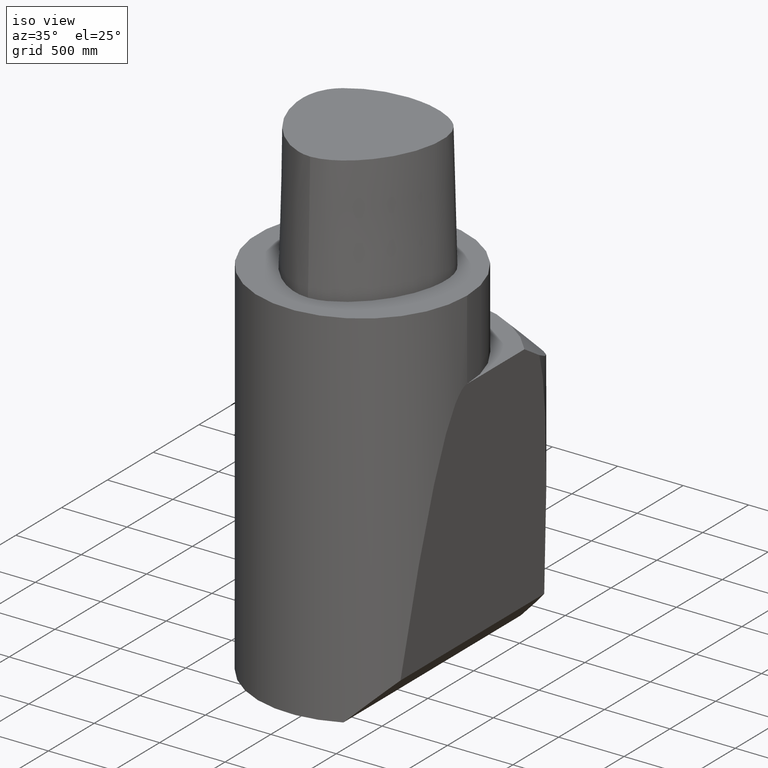
[diagram: clean part render]
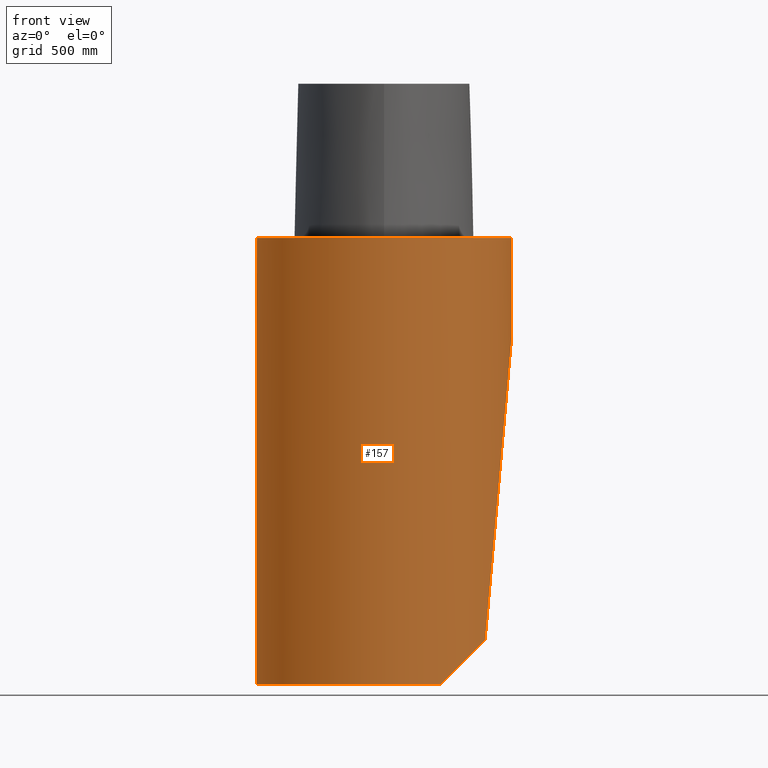
[diagram: tour spotlight — one face highlighted and labeled with its STEP entity id]
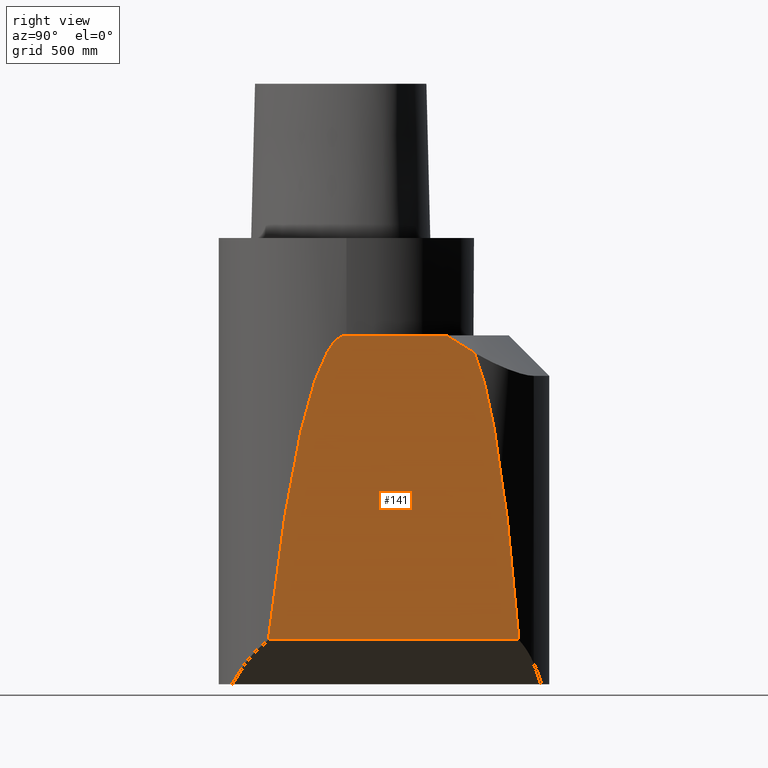
[diagram: tour spotlight — one face highlighted and labeled with its STEP entity id]
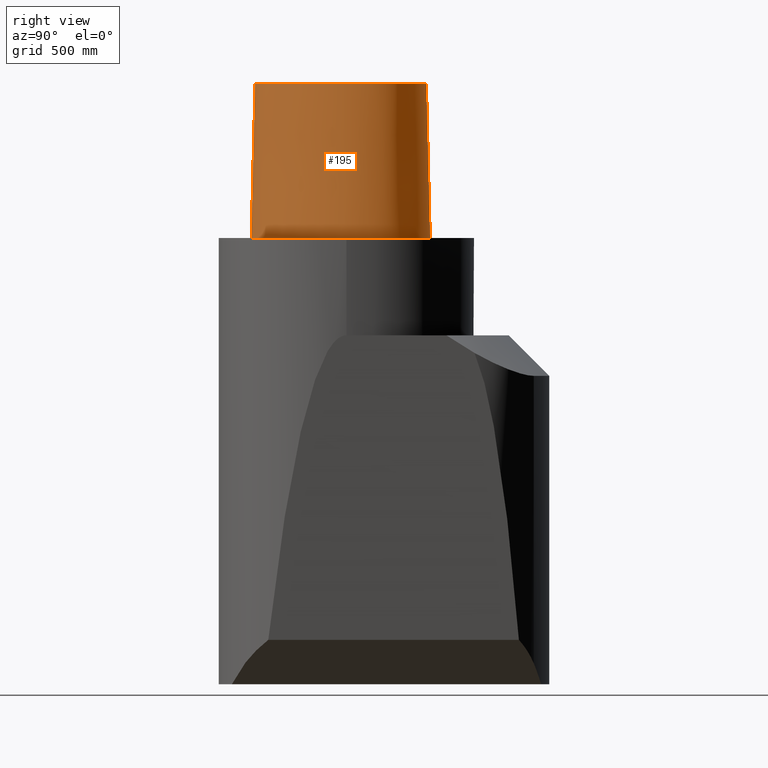
[diagram: tour spotlight — one face highlighted and labeled with its STEP entity id]
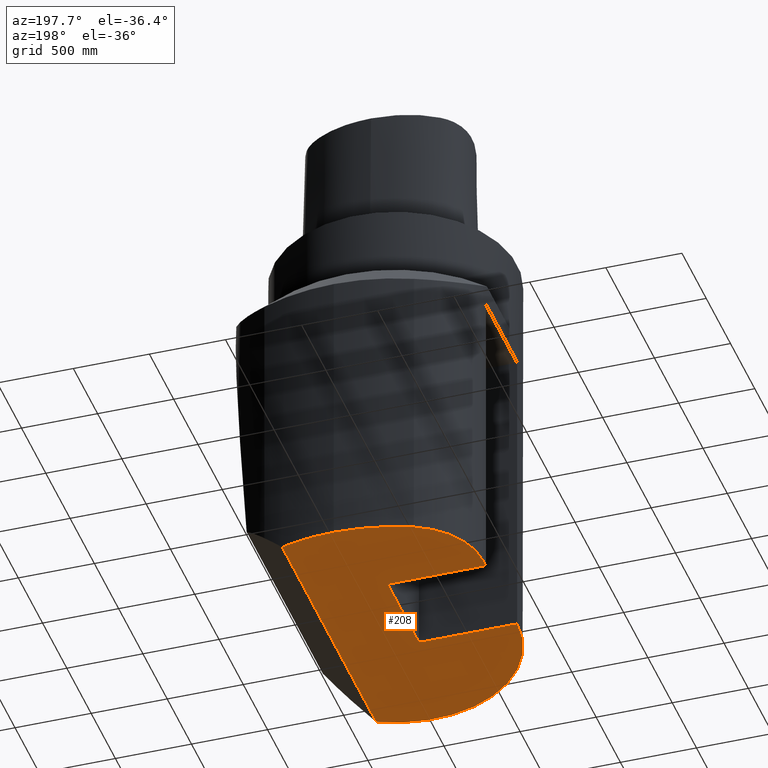
[diagram: tour spotlight — one face highlighted and labeled with its STEP entity id]
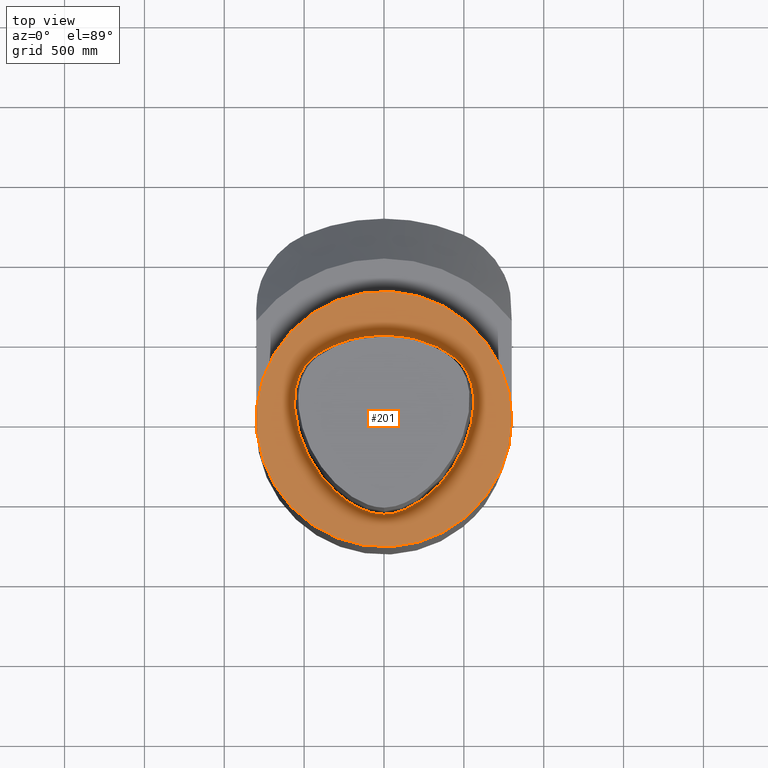
[diagram: tour spotlight — one face highlighted and labeled with its STEP entity id]
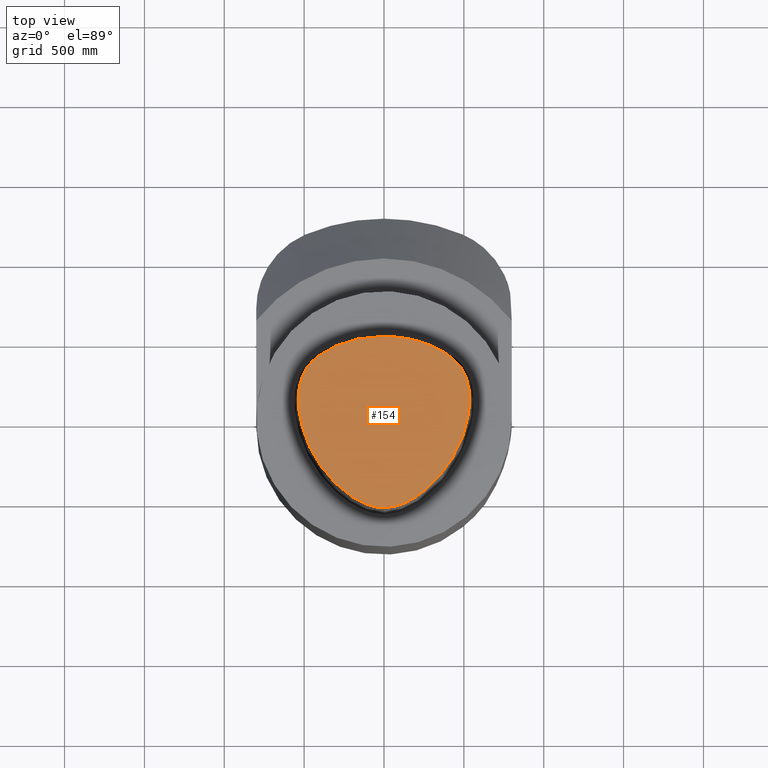
[diagram: tour spotlight — one face highlighted and labeled with its STEP entity id]
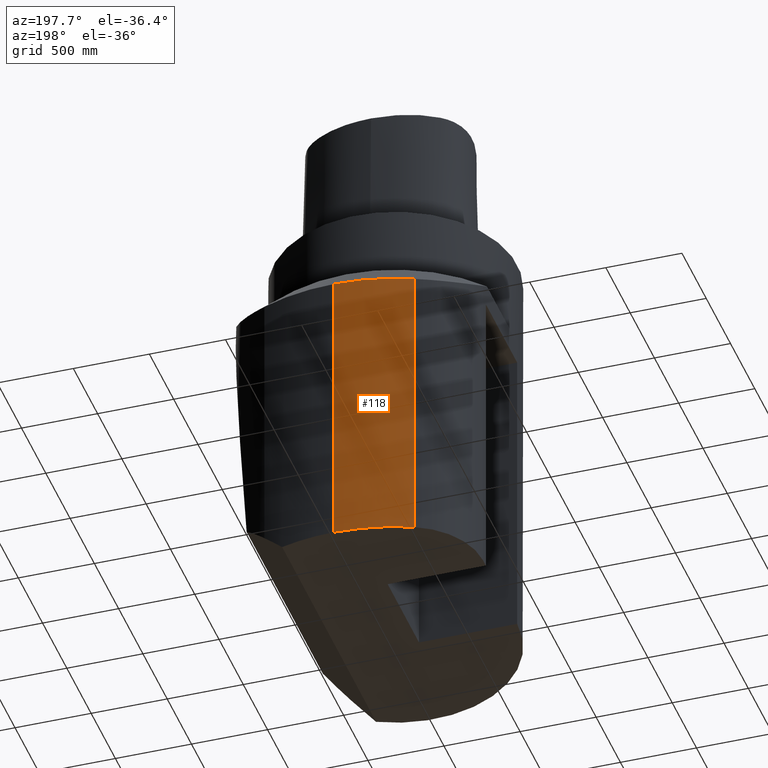
[diagram: tour spotlight — one face highlighted and labeled with its STEP entity id]
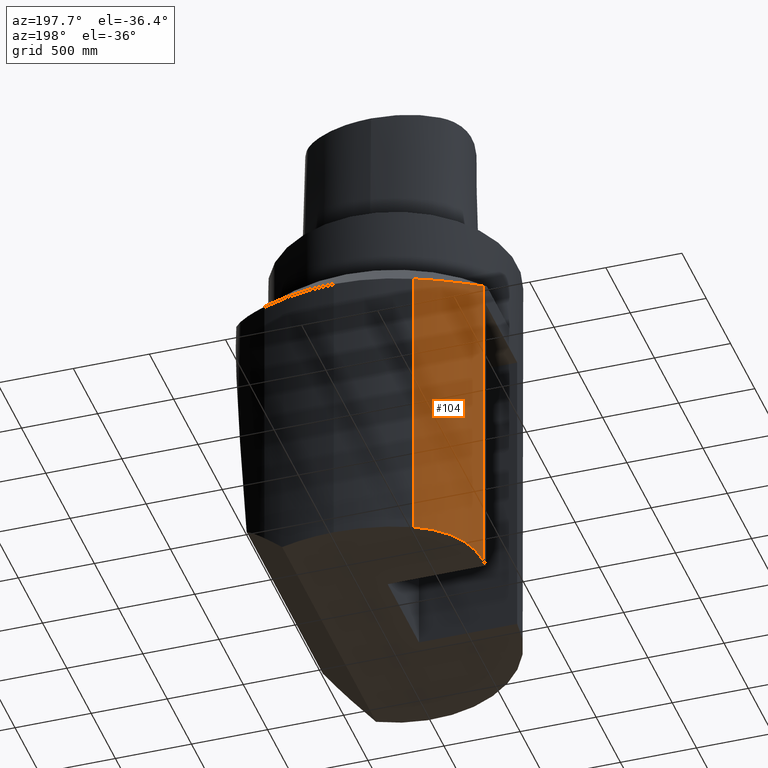
[diagram: tour spotlight — one face highlighted and labeled with its STEP entity id]
A machine part: a face-by-face anatomy tour. The part has 20 B-rep faces; the first image is the clean iso view, then the 8 largest visible faces are spotlighted one at a time (largest first), each with its STEP entity span.

Face 1 — front view, entity #157. In plain terms, the highlighted cylindrical surface (bore or boss wall) has radius 800.1 mm, axis along (0, -0, -1).
Definition (entity closure, byte-faithful):
#92=EDGE_CURVE('Unnamed[1]',#265,#266,#267,.T.);
#97=EDGE_CURVE('Unnamed[1]',#266,#273,#274,.T.);
#123=EDGE_CURVE('Unnamed[1]',#273,#316,#317,.T.);
#157=ADVANCED_FACE('Unnamed[1]',(#362,#363),#364,.T.);
#169=EDGE_CURVE('Unnamed[1]',#265,#379,#380,.T.);
#186=EDGE_CURVE('Unnamed[1]',#316,#288,#401,.T.);
#190=EDGE_CURVE('Unnamed[1]',#379,#288,#406,.T.);
#192=EDGE_CURVE('Unnamed[1]',#408,#408,#409,.T.);
#265=VERTEX_POINT('',#482);
#266=VERTEX_POINT('',#483);
#267=CIRCLE('',#484,31.5);
#273=VERTEX_POINT('',#492);
#274=LINE('',#493,#494);
#288=VERTEX_POINT('',#514);
#316=VERTEX_POINT('',#566);
#317=LINE('',#567,#568);
#362=FACE_BOUND('',#682,.T.);
#363=FACE_BOUND('',#683,.T.);
#364=CYLINDRICAL_SURFACE('',#684,31.5);
#379=VERTEX_POINT('',#722);
#380=ELLIPSE('',#723,44.5477272147526,31.5);
#401=CIRCLE('',#764,31.5);
#406=ELLIPSE('',#771,361.421967238612,31.5);
#408=VERTEX_POINT('',#774);
#409=CIRCLE('',#775,31.5);
#482=CARTESIAN_POINT('',(13.9999999999624,-28.2179021190636,-110.000000000098));
#483=CARTESIAN_POINT('',(-31.5,2.55437894524082E-014,-109.999999999992));
#484=AXIS2_PLACEMENT_3D('',#1046,#1047,#1048);
#492=CARTESIAN_POINT('',(-31.5,-5.28939329335578E-014,-29.9999999999993));
#493=CARTESIAN_POINT('',(-31.5,1.85633026972678E-014,-224.0));
#494=VECTOR('',#1060,1.0);
#514=CARTESIAN_POINT('',(31.5,-7.25603228494807E-015,-24.0));
#566=CARTESIAN_POINT('',(-31.5,3.08097706887413E-014,-24.0));
#567=CARTESIAN_POINT('',(-31.5,1.85633026972678E-014,-224.0));
#568=VECTOR('',#1101,1.0);
#682=EDGE_LOOP('',(#1138));
#683=EDGE_LOOP('',(#1139,#1140,#1141,#1142,#1143,#1144));
#684=AXIS2_PLACEMENT_3D('',#1145,#1146,#1147);
#722=CARTESIAN_POINT('',(24.9324394536427,-19.25158338658,-99.0675605464172));
#723=AXIS2_PLACEMENT_3D('',#1165,#1166,#1167);
#764=AXIS2_PLACEMENT_3D('',#1190,#1191,#1192);
#771=AXIS2_PLACEMENT_3D('',#1196,#1197,#1198);
#774=CARTESIAN_POINT('',(31.5,-5.78645612597124E-015,3.85763741731416E-015));
#775=AXIS2_PLACEMENT_3D('',#1199,#1200,#1201);
#1046=CARTESIAN_POINT('',(7.53338801361048E-015,2.16861520350889E-014,-110.000000000077));
#1047=DIRECTION('',(-1.50509126675426E-012,-6.12323399570912E-017,-1.0));
#1048=DIRECTION('',(3.06161699786838E-016,1.0,-6.1232339957552E-017));
#1060=DIRECTION('',(-1.22464679914735E-016,6.12323399573677E-017,1.0));
#1101=DIRECTION('',(-1.22464679914735E-016,6.12323399573677E-017,1.0));
#1138=ORIENTED_EDGE('',*,*,#192,.T.);
#1139=ORIENTED_EDGE('',*,*,#169,.T.);
#1140=ORIENTED_EDGE('',*,*,#190,.T.);
#1141=ORIENTED_EDGE('',*,*,#186,.F.);
#1142=ORIENTED_EDGE('',*,*,#123,.F.);
#1143=ORIENTED_EDGE('',*,*,#97,.F.);
#1144=ORIENTED_EDGE('',*,*,#92,.F.);
#1145=CARTESIAN_POINT('',(1.46957615897682E-015,-7.34788079488412E-016,-12.0));
#1146=DIRECTION('',(1.22464679914735E-016,-6.12323399573677E-017,-1.0));
#1147=DIRECTION('',(1.0,-1.83697019872103E-016,1.22464679914735E-016));
#1165=CARTESIAN_POINT('',(1.51856203094345E-014,-7.59281015471727E-015,-124.00000000006));
#1166=DIRECTION('',(-0.70710678118655,1.73191211247099E-016,0.707106781186545));
#1167=DIRECTION('',(0.707106781186545,-8.65956056235487E-017,0.70710678118655));
#1190=CARTESIAN_POINT('',(2.93915231795365E-015,-1.46957615897682E-015,-24.0));
#1191=DIRECTION('',(1.22464679914735E-016,-6.12323399573677E-017,-1.0));
#1192=DIRECTION('',(1.0,-1.83697019872103E-016,1.22464679914735E-016));
#1196=CARTESIAN_POINT('',(4.7032149762945E-014,-2.35160748814725E-014,-384.046647536993));
#1197=DIRECTION('',(-0.996194698091746,1.88334747321004E-016,0.0871557427476553));
#1198=DIRECTION('',(0.0871557427476553,4.49890822097971E-017,0.996194698091746));
#1199=CARTESIAN_POINT('',(0.0,0.0,0.0));
#1200=DIRECTION('',(1.22464679914735E-016,-6.12323399573677E-017,-1.0));
#1201=DIRECTION('',(1.0,-1.83697019872103E-016,1.22464679914735E-016));

Face 2 — right view, entity #141. In plain terms, the highlighted planar face has unit normal (-0.9962, 0, 0.0872).
Definition (entity closure, byte-faithful):
#106=EDGE_CURVE('Unnamed[1]',#288,#289,#290,.T.);
#141=ADVANCED_FACE('Unnamed[1]',(#342),#343,.F.);
#190=EDGE_CURVE('Unnamed[1]',#379,#288,#406,.T.);
#210=EDGE_CURVE('Unnamed[1]',#292,#304,#433,.T.);
#229=EDGE_CURVE('Unnamed[1]',#289,#292,#453,.T.);
#247=EDGE_CURVE('Unnamed[1]',#379,#304,#473,.T.);
#288=VERTEX_POINT('',#514);
#289=VERTEX_POINT('',#515);
#290=LINE('',#516,#517);
#292=VERTEX_POINT('',#520);
#304=VERTEX_POINT('',#551);
#342=FACE_OUTER_BOUND('',#605,.T.);
#343=PLANE('',#606);
#379=VERTEX_POINT('',#722);
#406=ELLIPSE('',#771,361.421967238612,31.5);
#433=ELLIPSE('',#874,229.474264913404,20.0);
#453=(B_SPLINE_CURVE(2,(#989,#990,#991),.UNSPECIFIED.,.F.,.F.)B_SPLINE_CURVE_WITH_KNOTS((3,3),(0.0,17.9505613842272),.UNSPECIFIED.)RATIONAL_B_SPLINE_CURVE((1.0,1.01227031404473,1.0))BOUNDED_CURVE()REPRESENTATION_ITEM('')GEOMETRIC_REPRESENTATION_ITEM()CURVE());
#473=LINE('',#1043,#1044);
#514=CARTESIAN_POINT('',(31.5,-7.25603228494807E-015,-24.0));
#515=CARTESIAN_POINT('',(31.4999999999998,24.6525860712455,-24.0));
#516=CARTESIAN_POINT('',(31.4999999999998,6.92662721561405,-24.0));
#517=VECTOR('',#1071,1.0);
#520=CARTESIAN_POINT('',(31.1202210060076,31.5855458145115,-28.3408937648218));
#551=CARTESIAN_POINT('',(24.9324394536427,42.5243889511943,-99.0675605464172));
#605=EDGE_LOOP('',(#1121,#1122,#1123,#1124,#1125));
#606=AXIS2_PLACEMENT_3D('',#1126,#1127,#1128);
#722=CARTESIAN_POINT('',(24.9324394536427,-19.25158338658,-99.0675605464172));
#771=AXIS2_PLACEMENT_3D('',#1196,#1197,#1198);
#874=AXIS2_PLACEMENT_3D('',#1243,#1244,#1245);
#989=CARTESIAN_POINT('',(31.4999999999999,24.6525860712454,-24.0));
#990=CARTESIAN_POINT('',(31.1639087074079,31.3151129702548,-27.8415410528293));
#991=CARTESIAN_POINT('',(30.6250731240223,39.5240545960501,-34.0004599535158));
#1043=CARTESIAN_POINT('',(24.9324394536427,-1.06461533719011E-014,-99.0675605464172));
#1044=VECTOR('',#1280,1.0);
#1071=DIRECTION('',(3.11923701062335E-016,1.0,-6.12323399573677E-017));
#1121=ORIENTED_EDGE('',*,*,#210,.F.);
#1122=ORIENTED_EDGE('',*,*,#229,.F.);
#1123=ORIENTED_EDGE('',*,*,#106,.F.);
#1124=ORIENTED_EDGE('',*,*,#190,.F.);
#1125=ORIENTED_EDGE('',*,*,#247,.T.);
#1126=CARTESIAN_POINT('',(28.2162197268213,-8.95109282842459E-015,-61.5337802732086));
#1127=DIRECTION('',(-0.996194698091746,1.88334747321004E-016,0.0871557427476553));
#1128=DIRECTION('',(0.0871557427476553,4.49890822097971E-017,0.996194698091746));
#1196=CARTESIAN_POINT('',(4.7032149762945E-014,-2.35160748814725E-014,-384.046647536993));
#1197=DIRECTION('',(-0.996194698091746,1.88334747321004E-016,0.0871557427476553));
#1198=DIRECTION('',(0.0871557427476553,4.49890822097971E-017,0.996194698091746));
#1243=CARTESIAN_POINT('',(11.4999999999999,27.7065088624562,-252.601046055235));
#1244=DIRECTION('',(-0.996194698091746,1.88334747321004E-016,0.0871557427476553));
#1245=DIRECTION('',(-0.0871557427476553,-3.43155820714745E-017,-0.996194698091746));
#1280=DIRECTION('',(1.83697019872103E-016,1.0,-6.12323399573677E-017));

Face 3 — right view, entity #195. In plain terms, the highlighted face is a freeform B-spline surface patch.
Definition (entity closure, byte-faithful):
#132=EDGE_CURVE('Unnamed[1]',#330,#320,#331,.T.);
#145=EDGE_CURVE('Unnamed[1]',#320,#348,#349,.T.);
#195=ADVANCED_FACE('Unnamed[1]',(#412),#413,.T.);
#214=EDGE_CURVE('Unnamed[1]',#345,#348,#437,.T.);
#242=EDGE_CURVE('Unnamed[1]',#345,#330,#467,.T.);
#320=VERTEX_POINT('',#572);
#330=VERTEX_POINT('',#586);
#331=LINE('',#587,#588);
#345=VERTEX_POINT('',#609);
#348=VERTEX_POINT('',#628);
#349=B_SPLINE_CURVE_WITH_KNOTS('',3,(#629,#630,#631,#632,#633,#634,#635,#636,#637,#638,#639,#640,#641,#642,#643,#644,#645),.UNSPECIFIED.,.F.,.F.,(4,1,1,1,1,1,1,1,1,1,1,1,1,1,4),(-13.2302678617486,-12.816821991069,-12.4033761203893,-11.9899302497097,-11.57648437903,-11.1630385083504,-10.9563155730106,-10.7495926376707,-10.3361467669911,-9.92270089631145,-9.09580915495216,-8.26891741359287,-7.44202567223358,-7.02857980155394,-6.6151339308743),.UNSPECIFIED.);
#412=FACE_OUTER_BOUND('',#779,.T.);
#413=B_SPLINE_SURFACE_WITH_KNOTS('',3,3,((#780,#781,#782,#783),(#784,#785,#786,#787),(#788,#789,#790,#791),(#792,#793,#794,#795),(#796,#797,#798,#799),(#800,#801,#802,#803),(#804,#805,#806,#807),(#808,#809,#810,#811),(#812,#813,#814,#815),(#816,#817,#818,#819),(#820,#821,#822,#823),(#824,#825,#826,#827),(#828,#829,#830,#831),(#832,#833,#834,#835),(#836,#837,#838,#839),(#840,#841,#842,#843),(#844,#845,#846,#847)),.UNSPECIFIED.,.F.,.F.,.F.,(4,1,1,1,1,1,1,1,1,1,1,1,1,1,4),(4,4),(-13.2302678617486,-12.816821991069,-12.4033761203893,-11.9899302497097,-11.57648437903,-11.1630385083504,-10.9563155730106,-10.7495926376707,-10.3361467669911,-9.92270089631145,-9.09580915495216,-8.26891741359287,-7.44202567223358,-7.02857980155394,-6.6151339308743),(-3.8,0.0),.UNSPECIFIED.);
#437=LINE('',#880,#881);
#467=B_SPLINE_CURVE_WITH_KNOTS('',3,(#1020,#1021,#1022,#1023,#1024,#1025,#1026,#1027,#1028,#1029,#1030,#1031,#1032,#1033,#1034,#1035),.UNSPECIFIED.,.F.,.F.,(4,1,1,1,1,1,1,1,1,1,1,1,1,4),(6.61513393087476,6.99917207152274,7.48193246986995,7.96289324787093,8.45540287038584,9.10291653679981,9.67129810936083,10.1618749681153,10.6358867802489,11.1080734988593,11.6043706019633,12.09451993853,12.6985979284494,13.2302678617486),.UNSPECIFIED.);
#572=CARTESIAN_POINT('',(0.044682985379347,20.6765087343109,0.0));
#586=CARTESIAN_POINT('',(-0.001218547003662,19.7276821925089,38.0));
#587=CARTESIAN_POINT('',(-0.001218547003662,19.7276821925089,38.0));
#588=VECTOR('',#1114,38.0118715503078);
#609=CARTESIAN_POINT('',(0.038736923393866,-22.5191997536361,38.0));
#628=CARTESIAN_POINT('',(0.04359356758149,-23.4691235068931,-1.97215226305253E-031));
#629=CARTESIAN_POINT('',(0.044682985379347,20.6765087343109,0.0));
#630=CARTESIAN_POINT('',(1.42379272427753,20.6097915814392,-1.97215226305253E-031));
#631=CARTESIAN_POINT('',(4.2230955003445,20.4837538303966,-1.97215226305253E-031));
#632=CARTESIAN_POINT('',(8.47220762821777,19.6890432607088,0.0));
#633=CARTESIAN_POINT('',(12.5141247708253,18.2434968480404,-1.97215226305253E-031));
#634=CARTESIAN_POINT('',(16.3038624872874,16.1734192182143,-1.97215226305253E-031));
#635=CARTESIAN_POINT('',(19.1446913988473,13.7036723639434,-3.94430452610506E-031));
#636=CARTESIAN_POINT('',(20.7319894342149,11.1014620996188,-1.97215226305253E-031));
#637=CARTESIAN_POINT('',(21.7831756505763,8.28099229708081,9.86076131526265E-032));
#638=CARTESIAN_POINT('',(22.2258240701438,4.60865440596506,-9.86076131526265E-032));
#639=CARTESIAN_POINT('',(21.7436130080666,-1.11326526354485,-2.46519032881566E-031));
#640=CARTESIAN_POINT('',(19.5519487660502,-7.95432366164584,-5.91645678915759E-031));
#641=CARTESIAN_POINT('',(14.9574167123838,-15.2089785567293,-3.94430452610506E-031));
#642=CARTESIAN_POINT('',(9.66840283021945,-20.0827414369705,0.0));
#643=CARTESIAN_POINT('',(4.51628650521788,-22.7946374572188,0.0));
#644=CARTESIAN_POINT('',(1.55867251738073,-23.4612972770043,-1.97215226305253E-031));
#645=CARTESIAN_POINT('',(0.04359356758149,-23.4691235068931,-1.97215226305253E-031));
#779=EDGE_LOOP('',(#1203,#1204,#1205,#1206));
#780=CARTESIAN_POINT('',(-0.001218367817519,19.7276822012873,38.0));
#781=CARTESIAN_POINT('',(0.014082083248157,20.0439577123075,25.3333333333066));
#782=CARTESIAN_POINT('',(0.029382534313671,20.3602332232908,12.6666666666934));
#783=CARTESIAN_POINT('',(0.044682985379347,20.6765087343109,0.0));
#784=CARTESIAN_POINT('',(1.37788651195108,19.6609652834875,38.0));
#785=CARTESIAN_POINT('',(1.3931885827258,19.9772407169847,25.3333333333066));
#786=CARTESIAN_POINT('',(1.40849065356095,20.2935162254648,12.6666666666934));
#787=CARTESIAN_POINT('',(1.42379272427753,20.6097915814392,-1.97215226305253E-031));
#788=CARTESIAN_POINT('',(4.135446440878,19.5347778787784,38.0));
#789=CARTESIAN_POINT('',(4.16466278851883,19.8511031866125,25.3333333333066));
#790=CARTESIAN_POINT('',(4.1938791526746,20.1674284644204,12.6666666666934));
#791=CARTESIAN_POINT('',(4.2230955003445,20.4837538303966,-1.97215226305253E-031));
#792=CARTESIAN_POINT('',(8.213607363795,18.7706026638736,38.0));
#793=CARTESIAN_POINT('',(8.29980745008421,19.0767495109635,25.3333333333066));
#794=CARTESIAN_POINT('',(8.38600751285747,19.3828964329996,12.6666666666934));
#795=CARTESIAN_POINT('',(8.47220762821777,19.6890432607088,0.0));
#796=CARTESIAN_POINT('',(12.1316338645671,17.3698624840857,38.0));
#797=CARTESIAN_POINT('',(12.2591308270381,17.6610739397708,25.3333333333066));
#798=CARTESIAN_POINT('',(12.3866278083543,17.9522853923553,12.6666666666934));
#799=CARTESIAN_POINT('',(12.5141247708253,18.2434968480404,-1.97215226305253E-031));
#800=CARTESIAN_POINT('',(15.7706546153679,15.3789501349612,38.0));
#801=CARTESIAN_POINT('',(15.9483905900895,15.6437731794811,25.3333333333066));
#802=CARTESIAN_POINT('',(16.1261265513272,15.9085961736944,12.6666666666934));
#803=CARTESIAN_POINT('',(16.3038624872874,16.1734192182143,-1.97215226305253E-031));
#804=CARTESIAN_POINT('',(18.4265894256284,13.0570022172893,38.0));
#805=CARTESIAN_POINT('',(18.6659567517146,13.2725589420689,25.3333333333066));
#806=CARTESIAN_POINT('',(18.9053240921419,13.4881156488541,12.6666666666934));
#807=CARTESIAN_POINT('',(19.1446913988473,13.7036723639434,-3.94430452610506E-031));
#808=CARTESIAN_POINT('',(19.8679958653038,10.6923771981998,38.0));
#809=CARTESIAN_POINT('',(20.1559937048299,10.8287388264873,25.3333333333066));
#810=CARTESIAN_POINT('',(20.4439915656177,10.965100461641,12.6666666666934));
#811=CARTESIAN_POINT('',(20.7319894342149,11.1014620996188,-1.97215226305253E-031));
#812=CARTESIAN_POINT('',(20.8470867582337,8.07149548576131,38.0));
#813=CARTESIAN_POINT('',(21.1591164072431,8.14132775555392,25.3333333333066));
#814=CARTESIAN_POINT('',(21.4711459821861,8.21116003697855,12.6666666666934));
#815=CARTESIAN_POINT('',(21.7831756505763,8.28099229708081,9.86076131526265E-032));
#816=CARTESIAN_POINT('',(21.2693244256982,4.61157245650171,38.0));
#817=CARTESIAN_POINT('',(21.5881576801997,4.6105997689982,25.3333333333066));
#818=CARTESIAN_POINT('',(21.9069908544037,4.60962709346857,12.6666666666934));
#819=CARTESIAN_POINT('',(22.2258240701438,4.60865440596506,-9.86076131526265E-032));
#820=CARTESIAN_POINT('',(20.8071610855575,-0.912828649855193,38.0));
#821=CARTESIAN_POINT('',(21.119311671178,-0.979640884839481,25.3333333333066));
#822=CARTESIAN_POINT('',(21.4314624224461,-1.04645306732201,12.6666666666934));
#823=CARTESIAN_POINT('',(21.7436130080666,-1.11326526354485,-2.46519032881566E-031));
#824=CARTESIAN_POINT('',(18.6841935581315,-7.54428794252837,38.0));
#825=CARTESIAN_POINT('',(18.9734452551861,-7.6809665891091,25.3333333333066));
#826=CARTESIAN_POINT('',(19.2626970689956,-7.81764505382656,12.6666666666934));
#827=CARTESIAN_POINT('',(19.5519487660502,-7.95432366164584,-5.91645678915759E-031));
#828=CARTESIAN_POINT('',(14.2175552814,-14.5971504342323,38.0));
#829=CARTESIAN_POINT('',(14.4641757465198,-14.8010930946929,25.3333333333066));
#830=CARTESIAN_POINT('',(14.710796247264,-15.0050359737917,12.6666666666934));
#831=CARTESIAN_POINT('',(14.9574167123838,-15.2089785567293,-3.94430452610506E-031));
#832=CARTESIAN_POINT('',(9.0844808732933,-19.3179298129689,38.0));
#833=CARTESIAN_POINT('',(9.27912152349017,-19.572866915557,25.3333333333066));
#834=CARTESIAN_POINT('',(9.47376218971294,-19.827804295621,12.6666666666934));
#835=CARTESIAN_POINT('',(9.66840283021945,-20.0827414369705,0.0));
#836=CARTESIAN_POINT('',(4.17112919194182,-21.8987568152736,38.0));
#837=CARTESIAN_POINT('',(4.28618163483998,-22.1973837173649,25.3333333333066));
#838=CARTESIAN_POINT('',(4.40123406239433,-22.4960105163661,12.6666666666934));
#839=CARTESIAN_POINT('',(4.51628650521788,-22.7946374572188,0.0));
#840=CARTESIAN_POINT('',(1.41533654381097,-22.5120888467812,38.0));
#841=CARTESIAN_POINT('',(1.46311520162011,-22.8284916374445,25.3333333333066));
#842=CARTESIAN_POINT('',(1.51089385942236,-23.144894486341,12.6666666666934));
#843=CARTESIAN_POINT('',(1.55867251738073,-23.4612972770043,-1.97215226305253E-031));
#844=CARTESIAN_POINT('',(0.038736923393866,-22.5191997536361,38.0));
#845=CARTESIAN_POINT('',(0.04035580478973,-22.8358410047159,25.3333333333066));
#846=CARTESIAN_POINT('',(0.041974686185626,-23.1524822558133,12.6666666666934));
#847=CARTESIAN_POINT('',(0.04359356758149,-23.4691235068931,-1.97215226305253E-031));
#880=CARTESIAN_POINT('',(0.038736923393866,-22.5191997536361,38.0));
#881=VECTOR('',#1249,38.0118715498723);
#1020=CARTESIAN_POINT('',(0.038736923394311,-22.519199753636,38.0));
#1021=CARTESIAN_POINT('',(1.31742058183662,-22.512662269405,38.0));
#1022=CARTESIAN_POINT('',(4.2093773447498,-21.9116226439989,38.0));
#1023=CARTESIAN_POINT('',(8.20895504542113,-19.7798683845067,38.0));
#1024=CARTESIAN_POINT('',(11.9784633234593,-16.681663904162,38.0));
#1025=CARTESIAN_POINT('',(15.5308821579362,-12.5807487594113,38.0));
#1026=CARTESIAN_POINT('',(18.4566248438667,-7.64932246015528,38.0));
#1027=CARTESIAN_POINT('',(20.4036090752029,-2.27012499825289,38.0));
#1028=CARTESIAN_POINT('',(21.2357187429189,2.79891401173156,38.0));
#1029=CARTESIAN_POINT('',(21.0811206267748,7.62543090736657,38.0));
#1030=CARTESIAN_POINT('',(19.3383577336563,12.2772250726194,38.0));
#1031=CARTESIAN_POINT('',(15.5796322014404,15.5799672120682,38.0));
#1032=CARTESIAN_POINT('',(10.8392956074438,17.9834601687347,38.0));
#1033=CARTESIAN_POINT('',(5.56068045850571,19.4586143858472,38.0));
#1034=CARTESIAN_POINT('',(1.77223893711014,19.6418877095654,38.0));
#1035=CARTESIAN_POINT('',(-0.001218367817519,19.7276822012873,38.0));
#1114=DIRECTION('',(0.001207557810519,0.024961321374199,-0.999687688350411));
#1203=ORIENTED_EDGE('',*,*,#145,.F.);
#1204=ORIENTED_EDGE('',*,*,#132,.F.);
#1205=ORIENTED_EDGE('',*,*,#242,.F.);
#1206=ORIENTED_EDGE('',*,*,#214,.T.);
#1249=DIRECTION('',(0.000127766510556,-0.024990186342461,-0.999687688361864));

Face 4 — auxiliary view, entity #208. In plain terms, the highlighted planar face has unit normal (-0, -0, -1).
Definition (entity closure, byte-faithful):
#92=EDGE_CURVE('Unnamed[1]',#265,#266,#267,.T.);
#99=EDGE_CURVE('Unnamed[1]',#276,#277,#278,.T.);
#113=EDGE_CURVE('Unnamed[1]',#300,#301,#302,.T.);
#179=EDGE_CURVE('Unnamed[1]',#266,#300,#393,.T.);
#184=EDGE_CURVE('Unnamed[1]',#398,#335,#399,.T.);
#203=EDGE_CURVE('Unnamed[1]',#424,#398,#425,.T.);
#208=ADVANCED_FACE('Unnamed[1]',(#430),#431,.T.);
#216=EDGE_CURVE('Unnamed[1]',#335,#265,#439,.T.);
#233=EDGE_CURVE('Unnamed[1]',#277,#424,#457,.T.);
#237=EDGE_CURVE('Unnamed[1]',#301,#276,#461,.T.);
#265=VERTEX_POINT('',#482);
#266=VERTEX_POINT('',#483);
#267=CIRCLE('',#484,31.5);
#276=VERTEX_POINT('',#497);
#277=VERTEX_POINT('',#498);
#278=LINE('',#499,#500);
#300=VERTEX_POINT('',#545);
#301=VERTEX_POINT('',#546);
#302=LINE('',#547,#548);
#335=VERTEX_POINT('',#595);
#393=LINE('',#753,#754);
#398=VERTEX_POINT('',#760);
#399=CIRCLE('',#761,50.0);
#424=VERTEX_POINT('',#861);
#425=CIRCLE('',#862,50.0000000000007);
#430=FACE_OUTER_BOUND('',#870,.T.);
#431=PLANE('',#871);
#439=LINE('',#884,#885);
#457=CIRCLE('',#1004,20.0);
#461=LINE('',#1011,#1012);
#482=CARTESIAN_POINT('',(13.9999999999624,-28.2179021190636,-110.000000000098));
#483=CARTESIAN_POINT('',(-31.5,2.55437894524082E-014,-109.999999999992));
#484=AXIS2_PLACEMENT_3D('',#1046,#1047,#1048);
#497=CARTESIAN_POINT('',(-31.5000000000001,25.3999999999999,-109.999999999992));
#498=CARTESIAN_POINT('',(-31.5000000000001,27.710094358173,-109.999999999992));
#499=CARTESIAN_POINT('',(-31.5,6.92752358954313,-109.999999999992));
#500=VECTOR('',#1061,1.0);
#545=CARTESIAN_POINT('',(-6.10000000000846,-3.40367150044949E-014,-110.00000000003));
#546=CARTESIAN_POINT('',(-6.10000000000845,25.3999999999999,-110.00000000003));
#547=CARTESIAN_POINT('',(-6.10000000000845,6.34999999999998,-110.00000000003));
#548=VECTOR('',#1080,1.0);
#595=CARTESIAN_POINT('',(13.9999999999624,47.9987399413341,-110.000000000098));
#753=CARTESIAN_POINT('',(3.10000000008387,-2.54322501557444E-014,-110.000000000044));
#754=VECTOR('',#1185,1.0);
#760=CARTESIAN_POINT('',(-0.00215974704769279,49.9999999533556,-110.000000000114));
#761=AXIS2_PLACEMENT_3D('',#1187,#1188,#1189);
#861=CARTESIAN_POINT('',(-19.4720041661639,46.0525900873443,-110.000000000114));
#862=AXIS2_PLACEMENT_3D('',#1226,#1227,#1228);
#870=EDGE_LOOP('',(#1231,#1232,#1233,#1234,#1235,#1236,#1237,#1238,#1239));
#871=AXIS2_PLACEMENT_3D('',#1240,#1241,#1242);
#884=CARTESIAN_POINT('',(14.0,-9.30731567352356E-015,-110.00000000006));
#885=VECTOR('',#1250,1.0);
#1004=AXIS2_PLACEMENT_3D('',#1260,#1261,#1262);
#1011=CARTESIAN_POINT('',(3.10000000008385,25.3999999999999,-110.000000000044));
#1012=VECTOR('',#1264,1.0);
#1046=CARTESIAN_POINT('',(7.53338801361048E-015,2.16861520350889E-014,-110.000000000077));
#1047=DIRECTION('',(-1.50509126675426E-012,-6.12323399570912E-017,-1.0));
#1048=DIRECTION('',(3.06161699786838E-016,1.0,-6.1232339957552E-017));
#1061=DIRECTION('',(-3.91902584538168E-015,1.0,-6.12323399511927E-017));
#1080=DIRECTION('',(2.88599982828811E-016,1.0,-6.12323399575256E-017));
#1185=DIRECTION('',(1.0,9.3526791833306E-016,-1.50509126675426E-012));
#1187=CARTESIAN_POINT('',(-0.00431947811943407,2.16869455103468E-014,-110.000000000077));
#1188=DIRECTION('',(-1.50509126675426E-012,-6.12323399570912E-017,-1.0));
#1189=DIRECTION('',(3.06161699786838E-016,1.0,-6.1232339957552E-017));
#1226=CARTESIAN_POINT('',(1.34711147906349E-014,-6.73555739531744E-015,-110.000000000114));
#1227=DIRECTION('',(1.22464679914735E-016,-6.12323399573677E-017,-1.0));
#1228=DIRECTION('',(1.0,-1.83697019872103E-016,1.22464679914735E-016));
#1231=ORIENTED_EDGE('',*,*,#237,.T.);
#1232=ORIENTED_EDGE('',*,*,#99,.T.);
#1233=ORIENTED_EDGE('',*,*,#233,.T.);
#1234=ORIENTED_EDGE('',*,*,#203,.T.);
#1235=ORIENTED_EDGE('',*,*,#184,.T.);
#1236=ORIENTED_EDGE('',*,*,#216,.T.);
#1237=ORIENTED_EDGE('',*,*,#92,.T.);
#1238=ORIENTED_EDGE('',*,*,#179,.T.);
#1239=ORIENTED_EDGE('',*,*,#113,.T.);
#1240=CARTESIAN_POINT('',(25.0000000000004,-1.13279828921178E-014,-110.000000000077));
#1241=DIRECTION('',(-1.50509126675426E-012,-6.12323399570912E-017,-1.0));
#1242=DIRECTION('',(1.0,-1.83697019872195E-016,-1.50509126675426E-012));
#1250=DIRECTION('',(-1.83697019872103E-016,-1.0,6.12323399573677E-017));
#1260=CARTESIAN_POINT('',(-11.5000000000001,27.710094358173,-110.000000000077));
#1261=DIRECTION('',(-1.50509126675426E-012,-6.12323399570912E-017,-1.0));
#1262=DIRECTION('',(3.06161699786838E-016,1.0,-6.1232339957552E-017));
#1264=DIRECTION('',(-1.0,1.83697019872195E-016,1.50509126675426E-012));

Face 5 — top view, entity #201. In plain terms, the highlighted planar face has unit normal (-0, 0, 1).
Definition (entity closure, byte-faithful):
#125=EDGE_CURVE('Unnamed[1]',#319,#320,#321,.T.);
#145=EDGE_CURVE('Unnamed[1]',#320,#348,#349,.T.);
#149=EDGE_CURVE('Unnamed[1]',#348,#319,#353,.T.);
#192=EDGE_CURVE('Unnamed[1]',#408,#408,#409,.T.);
#201=ADVANCED_FACE('Unnamed[1]',(#420,#421),#422,.T.);
#319=VERTEX_POINT('',#571);
#320=VERTEX_POINT('',#572);
#321=CIRCLE('',#573,0.949936168436318);
#348=VERTEX_POINT('',#628);
#349=B_SPLINE_CURVE_WITH_KNOTS('',3,(#629,#630,#631,#632,#633,#634,#635,#636,#637,#638,#639,#640,#641,#642,#643,#644,#645),.UNSPECIFIED.,.F.,.F.,(4,1,1,1,1,1,1,1,1,1,1,1,1,1,4),(-13.2302678617486,-12.816821991069,-12.4033761203893,-11.9899302497097,-11.57648437903,-11.1630385083504,-10.9563155730106,-10.7495926376707,-10.3361467669911,-9.92270089631145,-9.09580915495216,-8.26891741359287,-7.44202567223358,-7.02857980155394,-6.6151339308743),.UNSPECIFIED.);
#353=B_SPLINE_CURVE_WITH_KNOTS('',3,(#652,#653,#654,#655,#656,#657,#658,#659,#660,#661,#662,#663,#664,#665,#666,#667,#668,#669),.UNSPECIFIED.,.F.,.F.,(4,1,1,1,1,1,1,1,1,2,1,1,1,1,4),(-6.6151339308743,-6.20168806019465,-5.78824218951501,-5.37479631883537,-4.96135044815572,-4.13445870679644,-3.30756696543715,-2.89412109475751,-2.48067522407786,-2.06722935339822,-1.65378348271857,-1.24033761203893,-0.826891741359287,-0.413445870679644,0.0),.UNSPECIFIED.);
#408=VERTEX_POINT('',#774);
#409=CIRCLE('',#775,31.5);
#420=FACE_BOUND('',#856,.T.);
#421=FACE_OUTER_BOUND('',#857,.T.);
#422=PLANE('',#858);
#571=CARTESIAN_POINT('',(-0.045171994691285,20.6766009553285,-1.97215226305253E-031));
#572=CARTESIAN_POINT('',(0.044682985379347,20.6765087343109,0.0));
#573=AXIS2_PLACEMENT_3D('',#1102,#1103,#1104);
#628=CARTESIAN_POINT('',(0.04359356758149,-23.4691235068931,-1.97215226305253E-031));
#629=CARTESIAN_POINT('',(0.044682985379347,20.6765087343109,0.0));
#630=CARTESIAN_POINT('',(1.42379272427753,20.6097915814392,-1.97215226305253E-031));
#631=CARTESIAN_POINT('',(4.2230955003445,20.4837538303966,-1.97215226305253E-031));
#632=CARTESIAN_POINT('',(8.47220762821777,19.6890432607088,0.0));
#633=CARTESIAN_POINT('',(12.5141247708253,18.2434968480404,-1.97215226305253E-031));
#634=CARTESIAN_POINT('',(16.3038624872874,16.1734192182143,-1.97215226305253E-031));
#635=CARTESIAN_POINT('',(19.1446913988473,13.7036723639434,-3.94430452610506E-031));
#636=CARTESIAN_POINT('',(20.7319894342149,11.1014620996188,-1.97215226305253E-031));
#637=CARTESIAN_POINT('',(21.7831756505763,8.28099229708081,9.86076131526265E-032));
#638=CARTESIAN_POINT('',(22.2258240701438,4.60865440596506,-9.86076131526265E-032));
#639=CARTESIAN_POINT('',(21.7436130080666,-1.11326526354485,-2.46519032881566E-031));
#640=CARTESIAN_POINT('',(19.5519487660502,-7.95432366164584,-5.91645678915759E-031));
#641=CARTESIAN_POINT('',(14.9574167123838,-15.2089785567293,-3.94430452610506E-031));
#642=CARTESIAN_POINT('',(9.66840283021945,-20.0827414369705,0.0));
#643=CARTESIAN_POINT('',(4.51628650521788,-22.7946374572188,0.0));
#644=CARTESIAN_POINT('',(1.55867251738073,-23.4612972770043,-1.97215226305253E-031));
#645=CARTESIAN_POINT('',(0.04359356758149,-23.4691235068931,-1.97215226305253E-031));
#652=CARTESIAN_POINT('',(0.04359356758149,-23.4691235068931,-1.97215226305253E-031));
#653=CARTESIAN_POINT('',(-1.4714994713963,-23.4767895315797,-1.97215226305253E-031));
#654=CARTESIAN_POINT('',(-4.43923476371401,-22.821149804767,0.0));
#655=CARTESIAN_POINT('',(-8.35043230079961,-20.8000751253325,0.0));
#656=CARTESIAN_POINT('',(-11.744900222602,-18.1556117874078,1.97215226305253E-031));
#657=CARTESIAN_POINT('',(-15.6989602501314,-14.0406306929147,-9.86076131526265E-032));
#658=CARTESIAN_POINT('',(-19.5352875070682,-8.00624990770787,-9.86076131526265E-032));
#659=CARTESIAN_POINT('',(-21.7205626190491,-1.16081708945282,2.71170936169723E-031));
#660=CARTESIAN_POINT('',(-22.2486616783342,4.54965558738736,3.94430452610506E-031));
#661=CARTESIAN_POINT('',(-21.6646421256468,9.00229539124618,3.94430452610506E-031));
#662=CARTESIAN_POINT('',(-20.3945635471922,11.7780544971003,-9.86076131526265E-032));
#663=CARTESIAN_POINT('',(-18.5925528034471,14.1980602922581,2.95822839457879E-031));
#664=CARTESIAN_POINT('',(-16.3226584122258,16.1777748720707,3.94430452610506E-031));
#665=CARTESIAN_POINT('',(-12.5076407874579,18.2524201541303,3.94430452610506E-031));
#666=CARTESIAN_POINT('',(-8.46776192107786,19.679114377952,-3.94430452610506E-031));
#667=CARTESIAN_POINT('',(-4.23043497193604,20.487781597334,1.97215226305253E-031));
#668=CARTESIAN_POINT('',(-1.42313094248379,20.6127745766442,0.0));
#669=CARTESIAN_POINT('',(-0.045171994691285,20.6766009553285,-1.97215226305253E-031));
#774=CARTESIAN_POINT('',(31.5,-5.78645612597124E-015,3.85763741731416E-015));
#775=AXIS2_PLACEMENT_3D('',#1199,#1200,#1201);
#856=EDGE_LOOP('',(#1219,#1220,#1221));
#857=EDGE_LOOP('',(#1222));
#858=AXIS2_PLACEMENT_3D('',#1223,#1224,#1225);
#1102=CARTESIAN_POINT('',(-0.001218547003662,19.7276821925089,1.90050309739906E-015));
#1103=DIRECTION('',(1.22464679914735E-016,-6.12323399573677E-017,-1.0));
#1104=DIRECTION('',(-0.046269895968506,0.998928974816059,-6.68331865786729E-017));
#1199=CARTESIAN_POINT('',(0.0,0.0,0.0));
#1200=DIRECTION('',(1.22464679914735E-016,-6.12323399573677E-017,-1.0));
#1201=DIRECTION('',(1.0,-1.83697019872103E-016,1.22464679914735E-016));
#1219=ORIENTED_EDGE('',*,*,#145,.T.);
#1220=ORIENTED_EDGE('',*,*,#149,.T.);
#1221=ORIENTED_EDGE('',*,*,#125,.T.);
#1222=ORIENTED_EDGE('',*,*,#192,.F.);
#1223=CARTESIAN_POINT('',(15.75,-2.89322806298562E-015,1.92881870865708E-015));
#1224=DIRECTION('',(-1.22464679914735E-016,6.12323399573677E-017,1.0));
#1225=DIRECTION('',(-1.0,1.83697019872103E-016,-1.22464679914735E-016));

Face 6 — top view, entity #154. In plain terms, the highlighted planar face has unit normal (-0, 0, 1).
Definition (entity closure, byte-faithful):
#143=EDGE_CURVE('Unnamed[1]',#330,#345,#346,.T.);
#154=ADVANCED_FACE('Unnamed[1]',(#358),#359,.T.);
#242=EDGE_CURVE('Unnamed[1]',#345,#330,#467,.T.);
#330=VERTEX_POINT('',#586);
#345=VERTEX_POINT('',#609);
#346=B_SPLINE_CURVE_WITH_KNOTS('',3,(#610,#611,#612,#613,#614,#615,#616,#617,#618,#619,#620,#621,#622,#623,#624,#625),.UNSPECIFIED.,.F.,.F.,(4,1,1,1,1,1,1,1,1,1,1,1,1,4),(0.0,0.447924670568964,0.9388024242536,1.50591409090711,2.07314340012323,2.72424957442464,3.2253501842849,3.80982102049476,4.34867996267067,4.85900173381144,5.37972031856977,6.03459825488646,6.61113557741484,6.61513393087395),.UNSPECIFIED.);
#358=FACE_OUTER_BOUND('',#677,.T.);
#359=PLANE('',#678);
#467=B_SPLINE_CURVE_WITH_KNOTS('',3,(#1020,#1021,#1022,#1023,#1024,#1025,#1026,#1027,#1028,#1029,#1030,#1031,#1032,#1033,#1034,#1035),.UNSPECIFIED.,.F.,.F.,(4,1,1,1,1,1,1,1,1,1,1,1,1,4),(6.61513393087476,6.99917207152274,7.48193246986995,7.96289324787093,8.45540287038584,9.10291653679981,9.67129810936083,10.1618749681153,10.6358867802489,11.1080734988593,11.6043706019633,12.09451993853,12.6985979284494,13.2302678617486),.UNSPECIFIED.);
#586=CARTESIAN_POINT('',(-0.001218547003662,19.7276821925089,38.0));
#609=CARTESIAN_POINT('',(0.038736923393866,-22.5191997536361,38.0));
#610=CARTESIAN_POINT('',(-0.001218547003662,19.7276821925089,38.0));
#611=CARTESIAN_POINT('',(-1.49408492138443,19.6585333605309,38.0));
#612=CARTESIAN_POINT('',(-4.62297391420352,19.513604770166,38.0));
#613=CARTESIAN_POINT('',(-9.56160616752212,18.4291575730197,38.0));
#614=CARTESIAN_POINT('',(-14.5427684976927,16.2697452580488,38.0));
#615=CARTESIAN_POINT('',(-19.4315563551602,12.5302108980807,38.0));
#616=CARTESIAN_POINT('',(-21.306358833612,6.76352894547076,38.0));
#617=CARTESIAN_POINT('',(-21.0724946936277,0.957075236984038,38.0));
#618=CARTESIAN_POINT('',(-19.7876470880144,-4.34628503581652,38.0));
#619=CARTESIAN_POINT('',(-17.5396999600095,-9.33314444653089,38.0));
#620=CARTESIAN_POINT('',(-14.645447733857,-13.7185760345629,38.0));
#621=CARTESIAN_POINT('',(-10.7996726536643,-17.856257282137,38.0));
#622=CARTESIAN_POINT('',(-6.00479510196376,-21.2687382067675,38.0));
#623=CARTESIAN_POINT('',(-1.90747171908525,-22.5250621415864,38.0));
#624=CARTESIAN_POINT('',(0.025424107066464,-22.5192678176378,38.0));
#625=CARTESIAN_POINT('',(0.038736923394311,-22.519199753636,38.0));
#677=EDGE_LOOP('',(#1132,#1133));
#678=AXIS2_PLACEMENT_3D('',#1134,#1135,#1136);
#1020=CARTESIAN_POINT('',(0.038736923394311,-22.519199753636,38.0));
#1021=CARTESIAN_POINT('',(1.31742058183662,-22.512662269405,38.0));
#1022=CARTESIAN_POINT('',(4.2093773447498,-21.9116226439989,38.0));
#1023=CARTESIAN_POINT('',(8.20895504542113,-19.7798683845067,38.0));
#1024=CARTESIAN_POINT('',(11.9784633234593,-16.681663904162,38.0));
#1025=CARTESIAN_POINT('',(15.5308821579362,-12.5807487594113,38.0));
#1026=CARTESIAN_POINT('',(18.4566248438667,-7.64932246015528,38.0));
#1027=CARTESIAN_POINT('',(20.4036090752029,-2.27012499825289,38.0));
#1028=CARTESIAN_POINT('',(21.2357187429189,2.79891401173156,38.0));
#1029=CARTESIAN_POINT('',(21.0811206267748,7.62543090736657,38.0));
#1030=CARTESIAN_POINT('',(19.3383577336563,12.2772250726194,38.0));
#1031=CARTESIAN_POINT('',(15.5796322014404,15.5799672120682,38.0));
#1032=CARTESIAN_POINT('',(10.8392956074438,17.9834601687347,38.0));
#1033=CARTESIAN_POINT('',(5.56068045850571,19.4586143858472,38.0));
#1034=CARTESIAN_POINT('',(1.77223893711014,19.6418877095654,38.0));
#1035=CARTESIAN_POINT('',(-0.001218367817519,19.7276822012873,38.0));
#1132=ORIENTED_EDGE('',*,*,#143,.T.);
#1133=ORIENTED_EDGE('',*,*,#242,.T.);
#1134=CARTESIAN_POINT('',(0.008647668684817,1.77491953635526,38.0));
#1135=DIRECTION('',(-1.12481983699639E-032,0.0,1.0));
#1136=DIRECTION('',(1.0,0.0,1.12481983699639E-032));

Face 7 — auxiliary view, entity #118. In plain terms, the highlighted cylindrical surface (partial cylindrical patch) has radius 1270 mm, axis along (0, -0, -1).
Definition (entity closure, byte-faithful):
#118=ADVANCED_FACE('Unnamed[1]',(#309),#310,.T.);
#203=EDGE_CURVE('Unnamed[1]',#424,#398,#425,.T.);
#205=EDGE_CURVE('Unnamed[1]',#424,#376,#427,.T.);
#212=EDGE_CURVE('Unnamed[1]',#376,#386,#435,.T.);
#225=EDGE_CURVE('Unnamed[1]',#386,#398,#449,.T.);
#309=FACE_OUTER_BOUND('',#557,.T.);
#310=CYLINDRICAL_SURFACE('',#558,50.0000000000007);
#376=VERTEX_POINT('',#701);
#386=VERTEX_POINT('',#731);
#398=VERTEX_POINT('',#760);
#424=VERTEX_POINT('',#861);
#425=CIRCLE('',#862,50.0000000000007);
#427=LINE('',#865,#866);
#435=CIRCLE('',#877,50.0000000000006);
#449=LINE('',#980,#981);
#557=EDGE_LOOP('',(#1085,#1086,#1087,#1088));
#558=AXIS2_PLACEMENT_3D('',#1089,#1090,#1091);
#701=CARTESIAN_POINT('',(-19.4720041661734,46.0525900873402,-33.9999999999993));
#731=CARTESIAN_POINT('',(-0.00215974573172323,49.9999999533556,-33.9999999999993));
#760=CARTESIAN_POINT('',(-0.00215974704769279,49.9999999533556,-110.000000000114));
#861=CARTESIAN_POINT('',(-19.4720041661639,46.0525900873443,-110.000000000114));
#862=AXIS2_PLACEMENT_3D('',#1226,#1227,#1228);
#865=CARTESIAN_POINT('',(-19.4720041661687,46.0525900873422,-224.0));
#866=VECTOR('',#1229,1.0);
#877=AXIS2_PLACEMENT_3D('',#1246,#1247,#1248);
#980=CARTESIAN_POINT('',(-0.00215974636336982,49.9999999533556,-224.0));
#981=VECTOR('',#1257,1.0);
#1085=ORIENTED_EDGE('',*,*,#225,.T.);
#1086=ORIENTED_EDGE('',*,*,#203,.F.);
#1087=ORIENTED_EDGE('',*,*,#205,.T.);
#1088=ORIENTED_EDGE('',*,*,#212,.T.);
#1089=CARTESIAN_POINT('',(8.81745695386789E-015,-4.40872847693395E-015,-72.0000000000567));
#1090=DIRECTION('',(1.22464679914735E-016,-6.12323399573677E-017,-1.0));
#1091=DIRECTION('',(1.0,-1.83697019872103E-016,1.22464679914735E-016));
#1226=CARTESIAN_POINT('',(1.34711147906349E-014,-6.73555739531744E-015,-110.000000000114));
#1227=DIRECTION('',(1.22464679914735E-016,-6.12323399573677E-017,-1.0));
#1228=DIRECTION('',(1.0,-1.83697019872103E-016,1.22464679914735E-016));
#1229=DIRECTION('',(-1.22464679914735E-016,6.12323399573677E-017,1.0));
#1246=CARTESIAN_POINT('',(4.16379911710091E-015,-2.08189955855046E-015,-33.9999999999993));
#1247=DIRECTION('',(1.22464679914735E-016,-6.12323399573677E-017,-1.0));
#1248=DIRECTION('',(1.0,-1.83697019872103E-016,1.22464679914735E-016));
#1257=DIRECTION('',(1.22464679914735E-016,-6.12323399573677E-017,-1.0));

Face 8 — auxiliary view, entity #104. In plain terms, the highlighted cylindrical surface (partial cylindrical patch) has radius 508 mm, axis along (-0, 0, 1).
Definition (entity closure, byte-faithful):
#104=ADVANCED_FACE('Unnamed[1]',(#285),#286,.T.);
#138=EDGE_CURVE('Unnamed[1]',#277,#338,#339,.T.);
#167=EDGE_CURVE('Unnamed[1]',#376,#338,#377,.T.);
#205=EDGE_CURVE('Unnamed[1]',#424,#376,#427,.T.);
#233=EDGE_CURVE('Unnamed[1]',#277,#424,#457,.T.);
#277=VERTEX_POINT('',#498);
#285=FACE_OUTER_BOUND('',#510,.T.);
#286=CYLINDRICAL_SURFACE('',#511,20.0);
#338=VERTEX_POINT('',#599);
#339=LINE('',#600,#601);
#376=VERTEX_POINT('',#701);
#377=B_SPLINE_CURVE_WITH_KNOTS('',3,(#702,#703,#704,#705,#706,#707,#708,#709,#710,#711,#712,#713,#714,#715,#716,#717,#718,#719),.UNSPECIFIED.,.F.,.F.,(4,2,2,2,2,2,2,2,4),(25.7528245711178,29.0069489375672,32.2610733040165,35.5151976704659,38.7693220369153,42.0234464033646,46.021059271307,50.0186721392495,54.0162850071919),.UNSPECIFIED.);
#424=VERTEX_POINT('',#861);
#427=LINE('',#865,#866);
#457=CIRCLE('',#1004,20.0);
#498=CARTESIAN_POINT('',(-31.5000000000001,27.710094358173,-109.999999999992));
#510=EDGE_LOOP('',(#1064,#1065,#1066,#1067));
#511=AXIS2_PLACEMENT_3D('',#1068,#1069,#1070);
#599=CARTESIAN_POINT('',(-31.5000000000001,27.710094358173,-25.9535377452093));
#600=CARTESIAN_POINT('',(-31.5000000000001,27.710094358173,-224.0));
#601=VECTOR('',#1119,1.0);
#701=CARTESIAN_POINT('',(-19.4720041661734,46.0525900873402,-33.9999999999993));
#702=CARTESIAN_POINT('',(-15.9912740201936,47.1992825833284,-33.8346578313695));
#703=CARTESIAN_POINT('',(-17.0943964799877,46.9450685448622,-33.9478644538266));
#704=CARTESIAN_POINT('',(-18.1643867689897,46.5982531012473,-34.0016554433048));
#705=CARTESIAN_POINT('',(-20.1681004955637,45.7666894278164,-34.0016554433048));
#706=CARTESIAN_POINT('',(-21.1692363925338,45.2539642711425,-33.9478644538266));
#707=CARTESIAN_POINT('',(-23.0871640085857,44.0508144823768,-33.7214512089124));
#708=CARTESIAN_POINT('',(-24.0039974557535,43.3604514558362,-33.5488550663357));
#709=CARTESIAN_POINT('',(-25.6914750305883,41.8481871820982,-33.0926781951172));
#710=CARTESIAN_POINT('',(-26.4635319745331,41.0251364661087,-32.8087085442073));
#711=CARTESIAN_POINT('',(-27.8269974150747,39.3129729202713,-32.1535181277358));
#712=CARTESIAN_POINT('',(-28.4184782509614,38.423938232725,-31.7822437033853));
#713=CARTESIAN_POINT('',(-29.5258390652618,36.462837326873,-30.9042276131235));
#714=CARTESIAN_POINT('',(-30.0429248640911,35.3084595234586,-30.3473077978641));
#715=CARTESIAN_POINT('',(-30.8473639987573,32.9306998961041,-29.1087480764684));
#716=CARTESIAN_POINT('',(-31.1349077743321,31.7074174652534,-28.4270410576744));
#717=CARTESIAN_POINT('',(-31.4764624864618,29.2750860626482,-26.9746146615626));
#718=CARTESIAN_POINT('',(-31.5308202847316,28.0647036723589,-26.2029512717335));
#719=CARTESIAN_POINT('',(-31.4835740242651,26.8996813667174,-25.4102437927157));
#861=CARTESIAN_POINT('',(-19.4720041661639,46.0525900873443,-110.000000000114));
#865=CARTESIAN_POINT('',(-19.4720041661687,46.0525900873422,-224.0));
#866=VECTOR('',#1229,1.0);
#1004=AXIS2_PLACEMENT_3D('',#1260,#1261,#1262);
#1064=ORIENTED_EDGE('',*,*,#233,.F.);
#1065=ORIENTED_EDGE('',*,*,#138,.T.);
#1066=ORIENTED_EDGE('',*,*,#167,.F.);
#1067=ORIENTED_EDGE('',*,*,#205,.F.);
#1068=CARTESIAN_POINT('',(-11.5000000000001,27.710094358173,-224.0));
#1069=DIRECTION('',(-1.22464679914735E-016,6.12323399573677E-017,1.0));
#1070=DIRECTION('',(3.06161699786838E-016,1.0,-6.12323399573676E-017));
#1119=DIRECTION('',(-1.22464679914735E-016,6.12323399573677E-017,1.0));
#1229=DIRECTION('',(-1.22464679914735E-016,6.12323399573677E-017,1.0));
#1260=CARTESIAN_POINT('',(-11.5000000000001,27.710094358173,-110.000000000077));
#1261=DIRECTION('',(-1.50509126675426E-012,-6.12323399570912E-017,-1.0));
#1262=DIRECTION('',(3.06161699786838E-016,1.0,-6.1232339957552E-017));